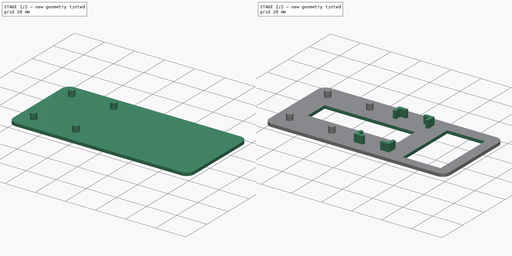
[diagram: build sequence overview — one tinted view per stage of 2, left to right]
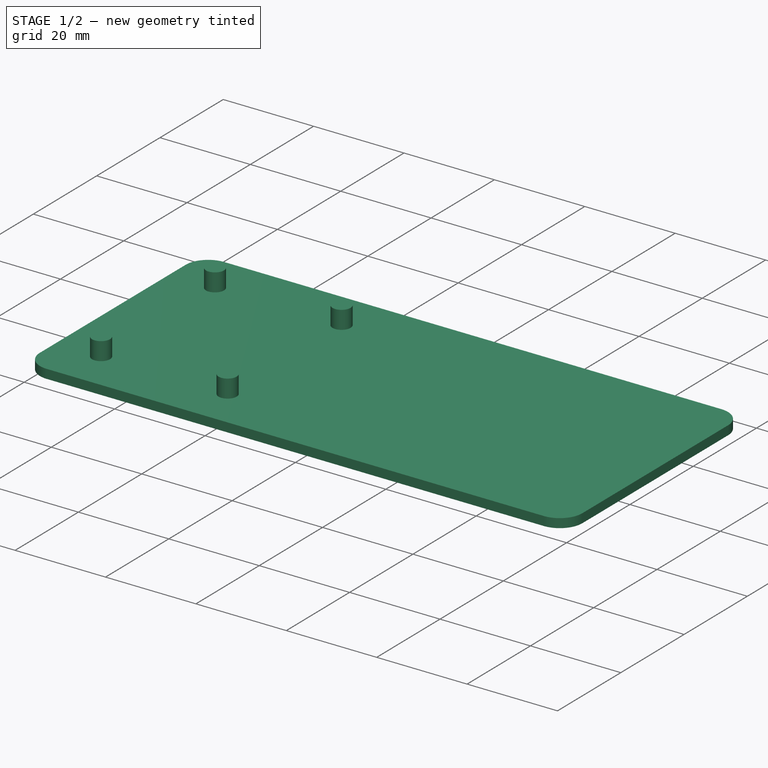
[diagram: stage 1 of 2 — iso view after this stage's code; geometry added in this stage tinted green]
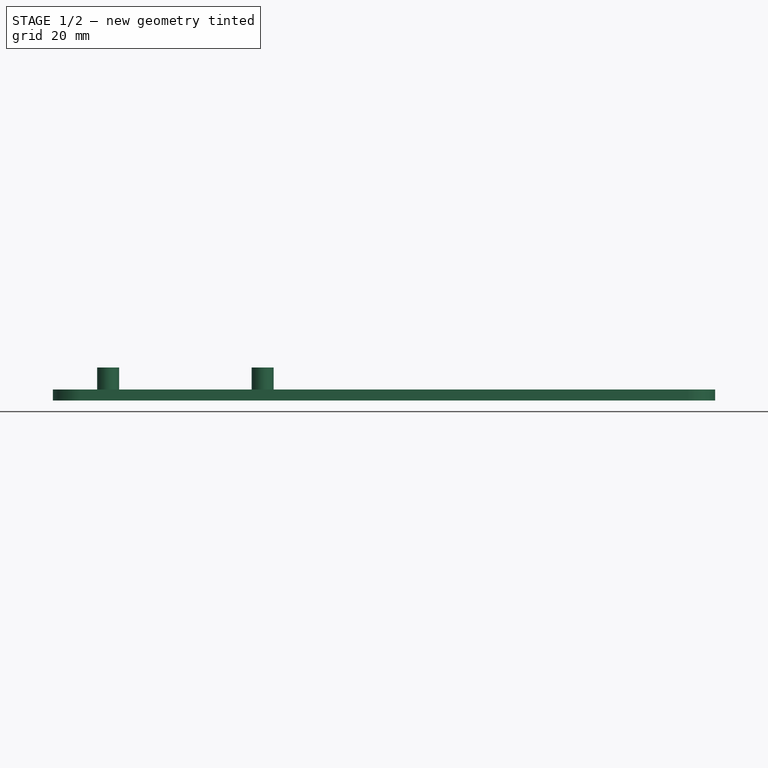
[diagram: stage 1 of 2 — front view after this stage's code; geometry added in this stage tinted green]
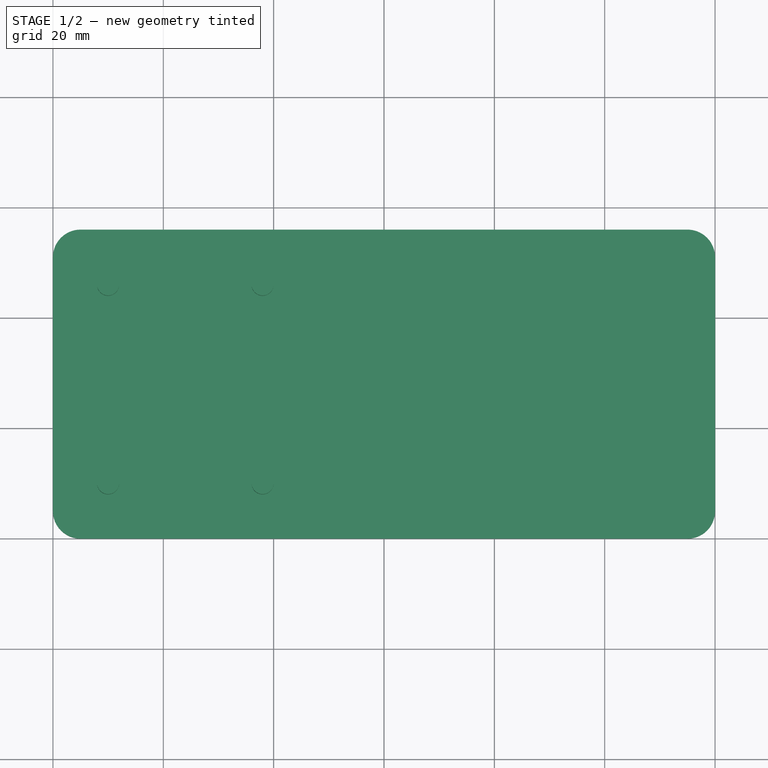
[diagram: stage 1 of 2 — top view after this stage's code; geometry added in this stage tinted green]
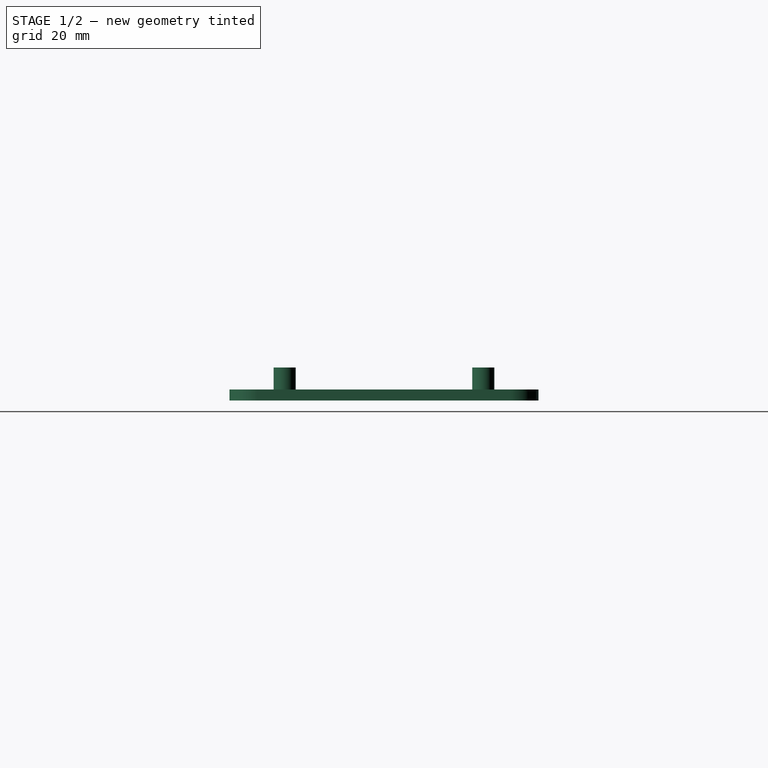
[diagram: stage 1 of 2 — right view after this stage's code; geometry added in this stage tinted green]
FCSTD DOCUMENT
Label: RDM6300case
objects: Sketcher::SketchObject×4, PartDesign::Pad×3, PartDesign::Pocket×1
note: 11 computed .brp shape members not serialized (recipe doc carries the construction recipe); baked Part::Feature solids carry a one-line shape summary decoded from their .brp

FEATURE [Sketcher::SketchObject] Sketch
  sketch-geometry (8):
    g0: LineSegment StartX=5.00002 StartY=0 StartZ=0 EndX=115 EndY=0 EndZ=0
    g1: ArcOfCircle CenterX=5 CenterY=51 CenterZ=0 NormalX=0 NormalY=0 NormalZ=1 Radius=5 StartAngle=1.57079 EndAngle=3.14159
    g2: ArcOfCircle CenterX=115 CenterY=51 CenterZ=0 NormalX=0 NormalY=0 NormalZ=1 Radius=5 StartAngle=1.50863e-06 EndAngle=1.5708
    g3: ArcOfCircle CenterX=5 CenterY=5 CenterZ=0 NormalX=0 NormalY=0 NormalZ=1 Radius=5 StartAngle=3.14159 EndAngle=4.71239
    g4: LineSegment StartX=6e-12 StartY=51 StartZ=0 EndX=6e-12 EndY=4.99999 EndZ=0
    g5: LineSegment StartX=5.00002 StartY=56 StartZ=0 EndX=115 EndY=56 EndZ=0
    g6: ArcOfCircle CenterX=115 CenterY=5 CenterZ=0 NormalX=0 NormalY=0 NormalZ=1 Radius=5 StartAngle=4.71238 EndAngle=6.28318
    g7: LineSegment StartX=120 StartY=4.99999 StartZ=0 EndX=120 EndY=51 EndZ=0
  constraints (28):
    c: Horizontal(g0)
    c: DistanceY(g0) = 0
    c: Coincident(g3,g0)
    c: Coincident(g4,g3)
    c: Vertical(g4)
    c: Coincident(g4,g1)
    c: Coincident(g5,g1)
    c: Coincident(g5,g2)
    c: Horizontal(g5)
    c: Tangent(g5,g2)
    c: Tangent(g5,g1)
    c: Tangent(g1,g4)
    c: Tangent(g4,g3)
    c: Tangent(g3,g0)
    c: Coincident(g6,g0)
    c: Coincident(g7,g6)
    c: Coincident(g7,g2)
    c: Tangent(g7,g2)
    c: Vertical(g7)
    c: Tangent(g6,g7)
    c: Tangent(g6,g0)
    c: Equal(g6,g2)
    c: Equal(g2,g1)
    c: Equal(g1,g3)
    c: Radius(g1) = 5
    c: DistanceX(g3) = 0
    c: DistanceX(g1,g2) = 120
    c: DistanceY(g1,g0) = -56
FEATURE [PartDesign::Pad] Pad
  Length = 2
  MirroredExtent = false
  Sketch = -> Sketch
FEATURE [Sketcher::SketchObject] Sketch001
  Placement = pos=(0,0,2) rot=(0,0,1;0rad)
  Support = -> Pad [Face10]
  sketch-geometry (8):
    g0: Circle CenterX=10 CenterY=46 CenterZ=0 NormalX=0 NormalY=0 NormalZ=1 Radius=2
    g1: Circle CenterX=38 CenterY=46 CenterZ=0 NormalX=0 NormalY=0 NormalZ=1 Radius=2
    g2: Circle CenterX=10 CenterY=10 CenterZ=0 NormalX=0 NormalY=0 NormalZ=1 Radius=2
    g3: Circle CenterX=38 CenterY=10 CenterZ=0 NormalX=0 NormalY=0 NormalZ=1 Radius=2
    g4: LineSegment [constr] StartX=10 StartY=46 StartZ=0 EndX=38 EndY=46 EndZ=0
    g5: LineSegment [constr] StartX=38 StartY=46 StartZ=0 EndX=38 EndY=10 EndZ=0
    g6: LineSegment [constr] StartX=38 StartY=10 StartZ=0 EndX=10 EndY=10 EndZ=0
    g7: LineSegment [constr] StartX=10 StartY=10 StartZ=0 EndX=10 EndY=46 EndZ=0
  constraints (20):
    c: Coincident(g4,g0)
    c: Coincident(g4,g1)
    c: Coincident(g4,g5)
    c: Coincident(g5,g3)
    c: Coincident(g5,g6)
    c: Coincident(g6,g2)
    c: Coincident(g6,g7)
    c: Coincident(g7,g0)
    c: Vertical(g5)
    c: Vertical(g7)
    c: Horizontal(g6)
    c: Horizontal(g4)
    c: Equal(g0,g1)
    c: Equal(g1,g3)
    c: Equal(g3,g2)
    c: Radius(g0) = 2
    c: DistanceX(g4) = 28
    c: DistanceY(g0,g2) = -36
    c: DistanceX(g2) = 10
    c: DistanceY(g2) = 10
FEATURE [PartDesign::Pad] Pad001
  Length = 4
  MirroredExtent = false
  Sketch = -> Sketch001
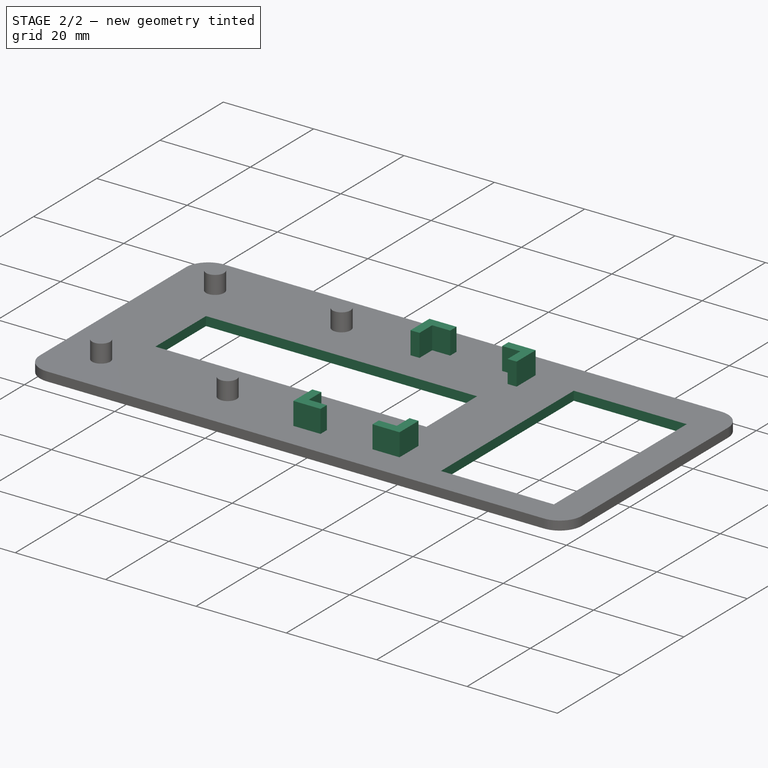
[diagram: stage 2 of 2 — iso view after this stage's code; geometry added in this stage tinted green]
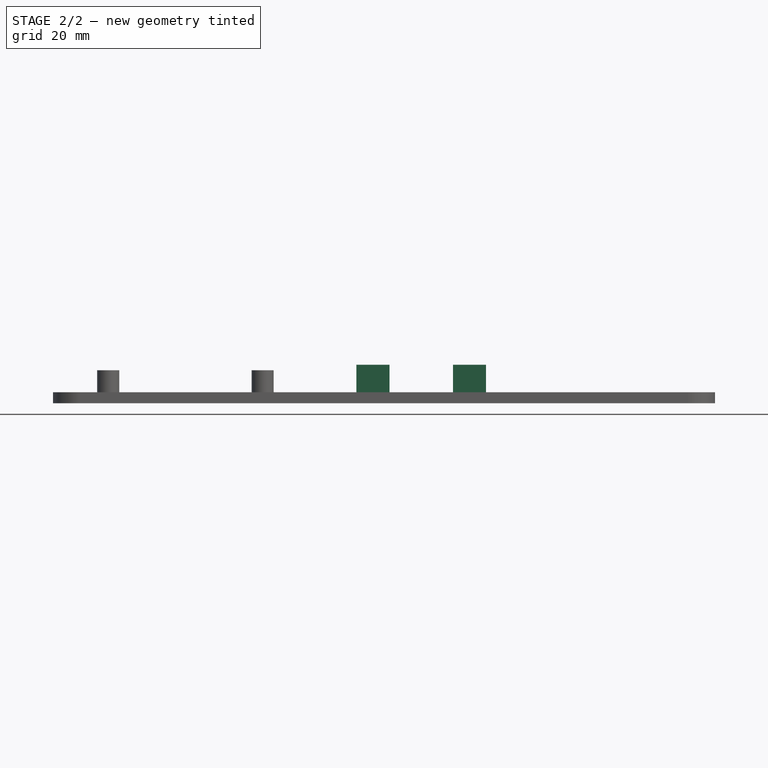
[diagram: stage 2 of 2 — front view after this stage's code; geometry added in this stage tinted green]
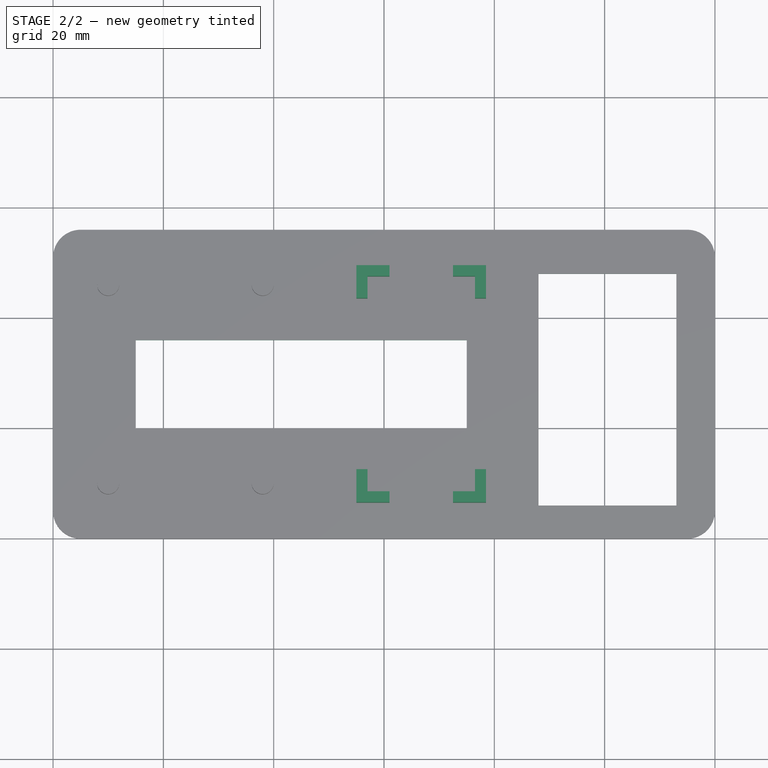
[diagram: stage 2 of 2 — top view after this stage's code; geometry added in this stage tinted green]
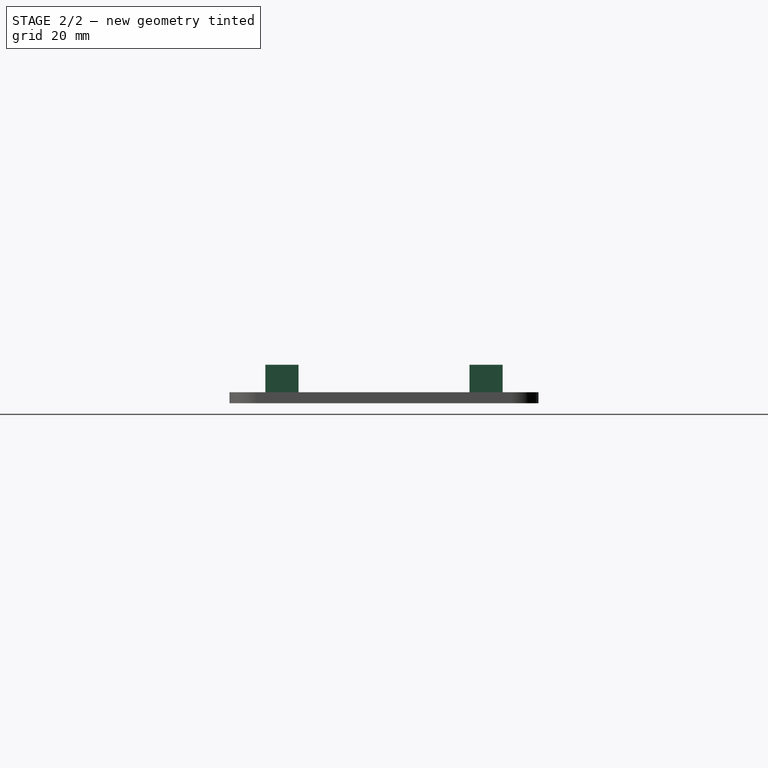
[diagram: stage 2 of 2 — right view after this stage's code; geometry added in this stage tinted green]
FEATURE [Sketcher::SketchObject] Sketch002
  Placement = pos=(0,0,2) rot=(0,0,1;0rad)
  Support = -> Pad001 [Face5]
  sketch-geometry (28):
    g0: LineSegment StartX=55 StartY=43.5 StartZ=0 EndX=55 EndY=49.5 EndZ=0
    g1: LineSegment StartX=55 StartY=49.5 StartZ=0 EndX=61 EndY=49.5 EndZ=0
    g2: LineSegment StartX=61 StartY=49.5 StartZ=0 EndX=61 EndY=47.5 EndZ=0
    g3: LineSegment StartX=61 StartY=47.5 StartZ=0 EndX=57 EndY=47.5 EndZ=0
    g4: LineSegment StartX=72.5 StartY=47.5 StartZ=0 EndX=72.5 EndY=49.5 EndZ=0
    g5: LineSegment StartX=72.5 StartY=49.5 StartZ=0 EndX=78.5 EndY=49.5 EndZ=0
    g6: LineSegment StartX=78.5 StartY=49.5 StartZ=0 EndX=78.5 EndY=43.5 EndZ=0
    g7: LineSegment StartX=78.5 StartY=43.5 StartZ=0 EndX=76.5 EndY=43.5 EndZ=0
    g8: LineSegment StartX=76.5 StartY=43.5 StartZ=0 EndX=76.5 EndY=47.5 EndZ=0
    g9: LineSegment StartX=76.5 StartY=47.5 StartZ=0 EndX=72.5 EndY=47.5 EndZ=0
    g10: LineSegment StartX=55 StartY=12.5 StartZ=0 EndX=57 EndY=12.5 EndZ=0
    g11: LineSegment StartX=57 StartY=12.5 StartZ=0 EndX=57 EndY=8.5 EndZ=0
    g12: LineSegment StartX=57 StartY=8.5 StartZ=0 EndX=61 EndY=8.5 EndZ=0
    g13: LineSegment StartX=61 StartY=8.5 StartZ=0 EndX=61 EndY=6.5 EndZ=0
    g14: LineSegment StartX=61 StartY=6.5 StartZ=0 EndX=55 EndY=6.5 EndZ=0
    g15: LineSegment StartX=55 StartY=6.5 StartZ=0 EndX=55 EndY=12.5 EndZ=0
    g16: LineSegment StartX=76.5 StartY=12.5 StartZ=0 EndX=78.5 EndY=12.5 EndZ=0
    g17: LineSegment StartX=78.5 StartY=12.5 StartZ=0 EndX=78.5 EndY=6.5 EndZ=0
    g18: LineSegment StartX=78.5 StartY=6.5 StartZ=0 EndX=72.5 EndY=6.5 EndZ=0
    g19: LineSegment StartX=72.5 StartY=6.5 StartZ=0 EndX=72.5 EndY=8.5 EndZ=0
    g20: LineSegment StartX=72.5 StartY=8.5 StartZ=0 EndX=76.5 EndY=8.5 EndZ=0
    g21: LineSegment StartX=76.5 StartY=8.5 StartZ=0 EndX=76.5 EndY=12.5 EndZ=0
    g22: LineSegment [constr] StartX=78.5 StartY=43.5 StartZ=0 EndX=78.5 EndY=12.5 EndZ=0
    g23: LineSegment [constr] StartX=55 StartY=43.5 StartZ=0 EndX=55 EndY=12.5 EndZ=0
    g24: LineSegment StartX=55 StartY=43.5 StartZ=0 EndX=57 EndY=43.5 EndZ=0
    g25: LineSegment StartX=57 StartY=43.5 StartZ=0 EndX=57 EndY=47.5 EndZ=0
    g26: LineSegment [constr] StartX=61 StartY=49.5 StartZ=0 EndX=72.5 EndY=49.5 EndZ=0
    g27: LineSegment [constr] StartX=61 StartY=6.5 StartZ=0 EndX=72.5 EndY=6.5 EndZ=0
  constraints (80):
    c: Coincident(g0,g1)
    c: Horizontal(g1)
    c: Coincident(g1,g2)
    c: Coincident(g2,g3)
    c: Horizontal(g3)
    c: Vertical(g0)
    c: Vertical(g2)
    c: DistanceY(g2) = -2
    c: DistanceX(g1) = 6
    c: Equal(g1,g0)
    c: Coincident(g4,g5)
    c: Horizontal(g5)
    c: Coincident(g5,g6)
    c: Vertical(g6)
    c: Coincident(g6,g7)
    c: Coincident(g7,g8)
    c: Vertical(g8)
    c: Coincident(g8,g9)
    c: Coincident(g9,g4)
    c: Horizontal(g9)
    c: Horizontal(g7)
    c: Vertical(g4)
    c: Equal(g2,g4)
    c: Equal(g7,g4)
    c: Equal(g5,g6)
    c: Equal(g5,g1)
    c: Horizontal(g10)
    c: Coincident(g10,g11)
    c: Vertical(g11)
    c: Coincident(g11,g12)
    c: Horizontal(g12)
    c: Coincident(g12,g13)
    c: Vertical(g13)
    c: Coincident(g13,g14)
    c: Horizontal(g14)
    c: Coincident(g14,g15)
    c: Coincident(g15,g10)
    c: Vertical(g15)
    c: Equal(g13,g10)
    c: Equal(g14,g15)
    c: Equal(g10,g2)
    c: Equal(g15,g1)
    c: Horizontal(g16)
    c: Coincident(g16,g17)
    c: Vertical(g17)
    c: Coincident(g17,g18)
    c: Horizontal(g18)
    c: Coincident(g18,g19)
    c: Vertical(g19)
    c: Coincident(g19,g20)
    c: Horizontal(g20)
    c: Coincident(g20,g21)
    c: Coincident(g21,g16)
    c: Vertical(g21)
    c: Equal(g16,g19)
    c: Equal(g18,g17)
    c: Equal(g16,g2)
    c: Equal(g17,g1)
    c: Coincident(g22,g6)
    c: Coincident(g22,g16)
    c: Vertical(g22)
    c: Coincident(g23,g0)
    c: Coincident(g23,g10)
    c: Vertical(g23)
    c: Coincident(g24,g0)
    c: Coincident(g24,g25)
    c: Coincident(g25,g3)
    c: Vertical(g25)
    c: Equal(g2,g24)
    c: Coincident(g26,g1)
    c: Coincident(g26,g4)
    c: Horizontal(g26)
    c: Coincident(g27,g13)
    c: Coincident(g27,g18)
    c: Horizontal(g27)
    c: DistanceX(g3,g8) = 19.5
    c: DistanceY(g8,g20) = -39
    c: Horizontal(g24)
    c: DistanceX(g14) = 55
    c: DistanceY(g14) = 6.5
FEATURE [PartDesign::Pad] Pad002
  Length = 5
  MirroredExtent = false
  Sketch = -> Sketch002
FEATURE [Sketcher::SketchObject] Sketch003
  Placement = pos=(0,0,2) rot=(0,0,1;0rad)
  Support = -> Pad002 [Face5]
  sketch-geometry (8):
    g0: LineSegment StartX=15 StartY=36 StartZ=0 EndX=75 EndY=36 EndZ=0
    g1: LineSegment StartX=75 StartY=36 StartZ=0 EndX=75 EndY=20 EndZ=0
    g2: LineSegment StartX=75 StartY=20 StartZ=0 EndX=15 EndY=20 EndZ=0
    g3: LineSegment StartX=15 StartY=20 StartZ=0 EndX=15 EndY=36 EndZ=0
    g4: LineSegment StartX=88 StartY=48 StartZ=0 EndX=113 EndY=48 EndZ=0
    g5: LineSegment StartX=113 StartY=48 StartZ=0 EndX=113 EndY=6 EndZ=0
    g6: LineSegment StartX=113 StartY=6 StartZ=0 EndX=88 EndY=6 EndZ=0
    g7: LineSegment StartX=88 StartY=6 StartZ=0 EndX=88 EndY=48 EndZ=0
  constraints (24):
    c: Coincident(g0,g1)
    c: Coincident(g1,g2)
    c: Coincident(g2,g3)
    c: Coincident(g3,g0)
    c: Horizontal(g0)
    c: Horizontal(g2)
    c: Vertical(g1)
    c: Vertical(g3)
    c: Coincident(g4,g5)
    c: Coincident(g5,g6)
    c: Coincident(g6,g7)
    c: Coincident(g7,g4)
    c: Horizontal(g4)
    c: Horizontal(g6)
    c: Vertical(g5)
    c: Vertical(g7)
    c: DistanceX(g2) = 15
    c: DistanceY(g2) = 20
    c: DistanceY(g3) = 16
    c: DistanceX(g0) = 60
    c: DistanceY(g5) = -42
    c: DistanceX(g4) = 25
    c: DistanceX(g6) = 88
    c: DistanceY(g6) = 6
FEATURE [PartDesign::Pocket] Pocket
  Length = 2
  Sketch = -> Sketch003
  Type = 0
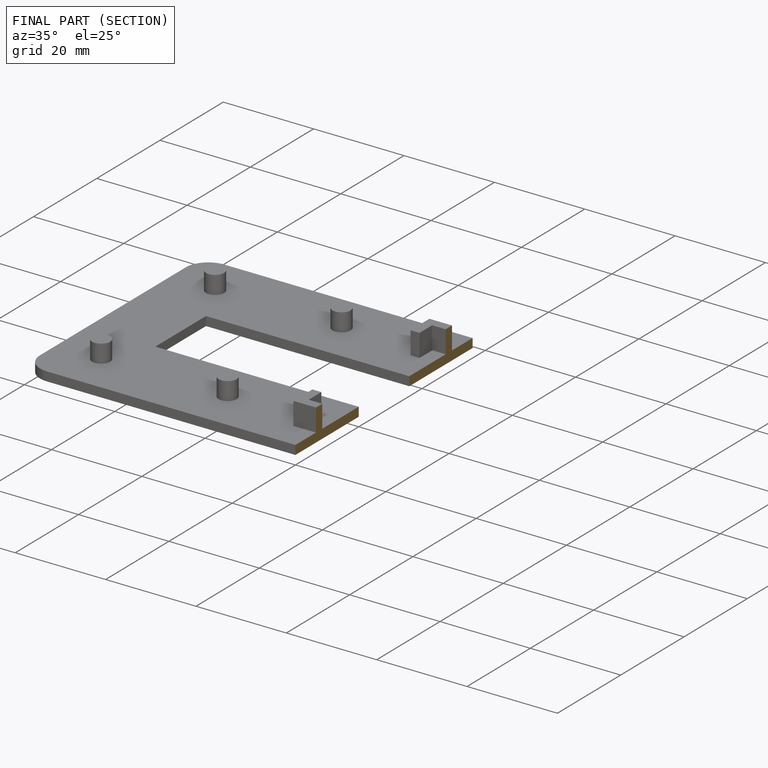
[diagram: finished part — half-section view (interior)]
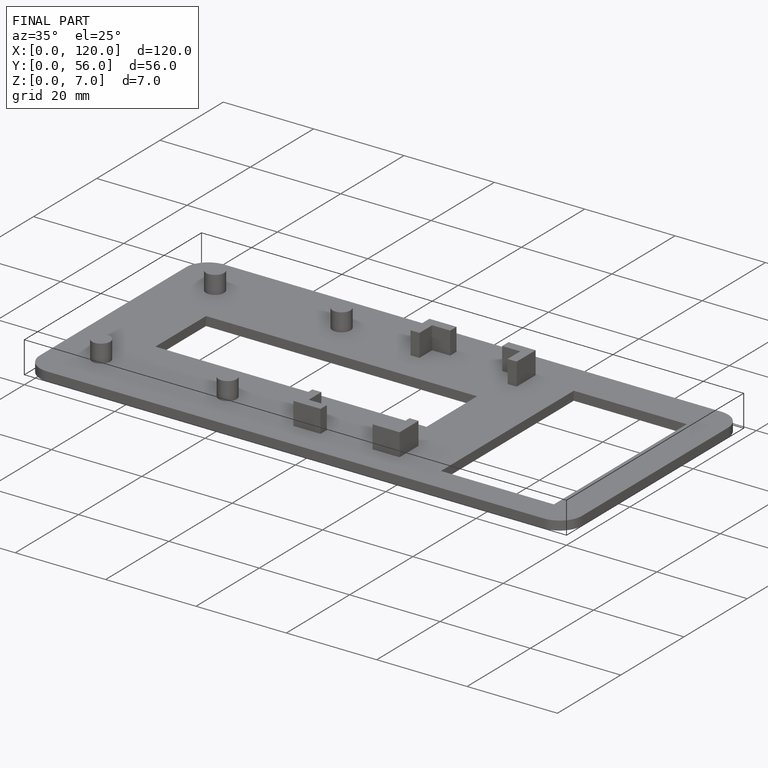
[diagram: finished part — iso view with bounding-box wireframe]
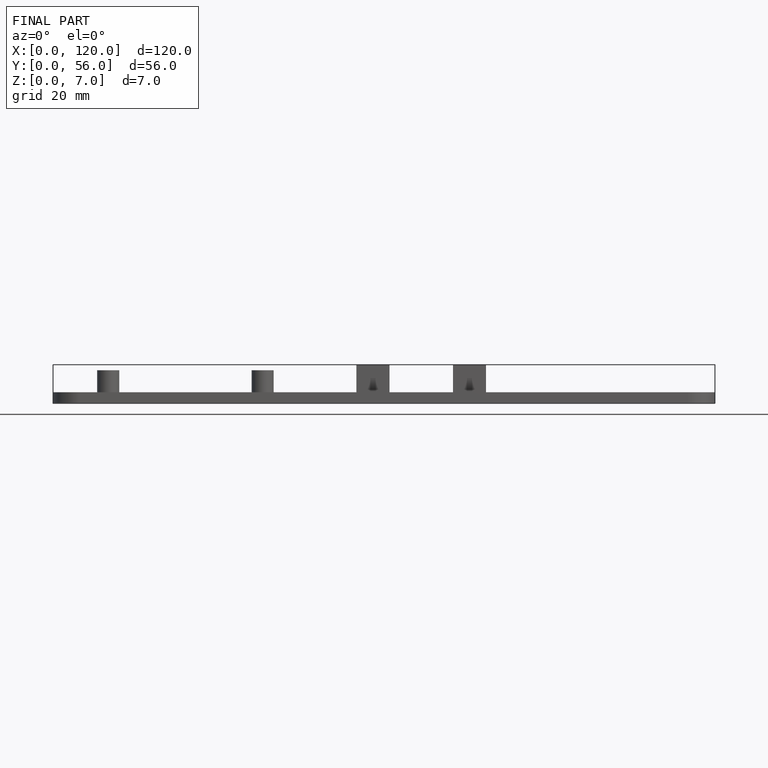
[diagram: finished part — front view with bounding-box wireframe]
